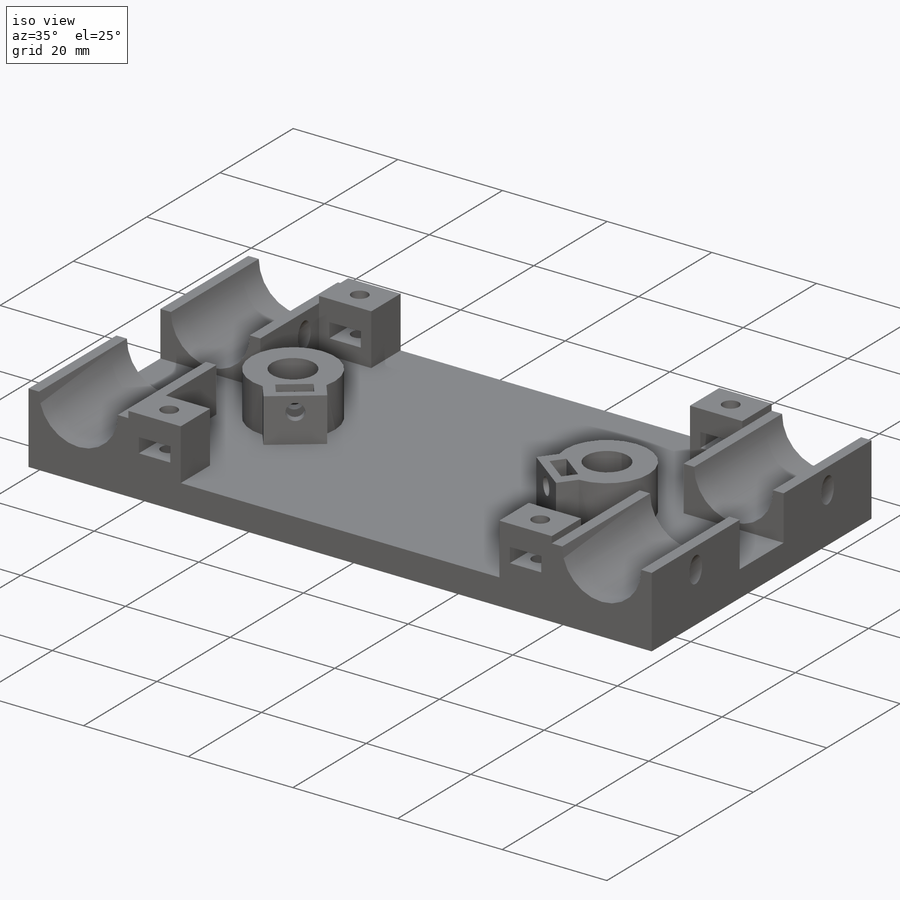
[diagram: iso view]
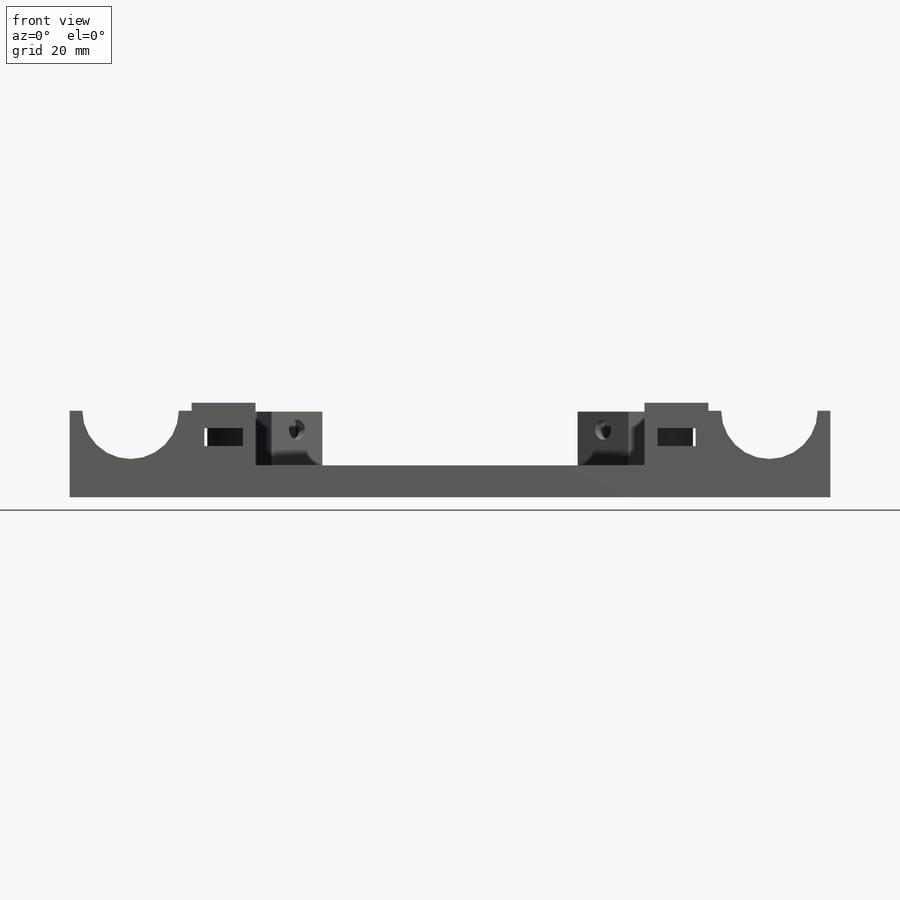
[diagram: front view]
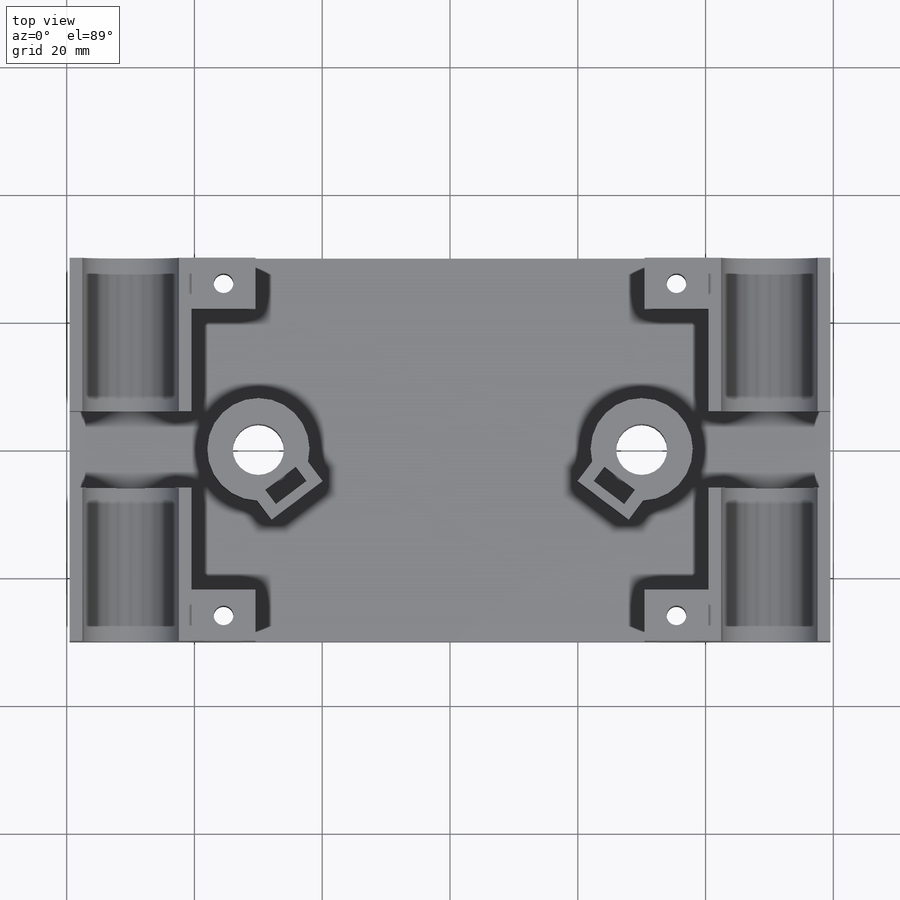
[diagram: top view]
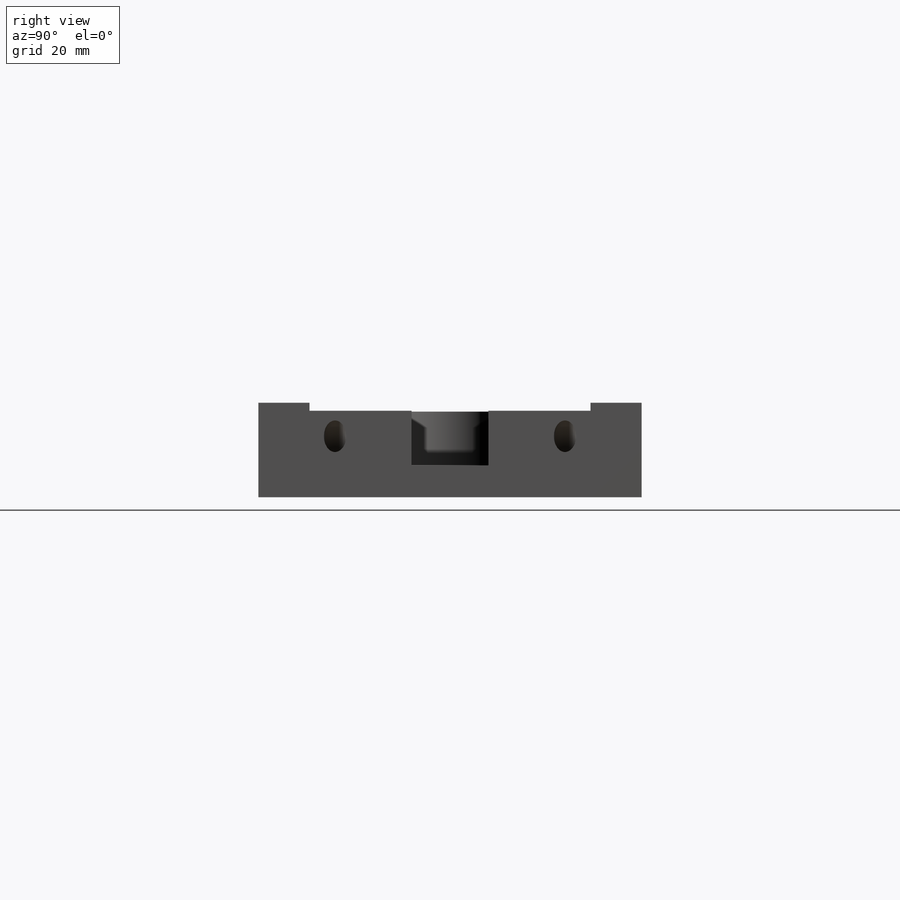
[diagram: right view]
SOLIDWORKS PART (.sldprt)
format: sldprt  version: not decoded by parser v0  size: 462,336 bytes
history: native  units: mm
features: sketch x9, mirror x8, cut_extrude x5, extrude x4, plane x2, material x1 (+13 scaffold rows collapsed)
feature tree (42):
  scaffold x13  (default folders/planes/origin — collapsed)
  material  "Material <not specified>"
  sketch  "Sketch1"  dims[D1=60.0mm D2=119.1mm D3=59.55mm D4=30.0mm]
  extrude  "Boss-Extrude1"  Depth=5mm
  sketch  "Sketch2"  dims[D3=15.1mm D1=19.1mm D2=8.55mm D4=50.0mm]
  extrude  "Boss-Extrude2"  Depth=24mm
  mirror  "Mirror1"
  mirror  "Mirror2"
  plane  "Plane1"
  plane  "Plane2"
  sketch  "Sketch3"  dims[D1=3.5mm]
  cut_extrude  "Cut-Extrude1"  Depth=10mm
  mirror  "Mirror3"
  mirror  "Mirror4"
  mirror  "Mirror5"
  sketch  "Sketch4"  dims[D1=8.0mm D2=8.0mm D5=16.0mm D6=16.0mm D3=30.0mm D4=30.0mm D7=10.0mm D8=10.0mm D9=5.0mm D10=30.0mm]
  extrude  "Boss-Extrude3"  Depth=8.4mm
  sketch  "Sketch6"  dims[D1=2.8mm D2=6.0mm D3=1.5mm D4=2.0mm]
  cut_extrude  "Cut-Extrude3"  Depth=6mm
  sketch  "Sketch7"  dims[D1=2.8mm D2=5.0mm]
  cut_extrude  "Cut-Extrude4"  Depth=8mm
  mirror  "Mirror7"
  sketch  "Sketch8"
  cut_extrude  "Cut-Extrude5"  Depth=8mm
  sketch  "Sketch9"  dims[D1=2.8mm D2=6.0mm D3=2.0mm D4=2.0mm D5=4.0mm D6=3.0mm]
  extrude  "Boss-Extrude4"  Depth=8mm
  mirror  "Mirror8"
  mirror  "Mirror9"
  sketch  "Sketch10"  dims[D1=3.1mm D2=4.0mm D3=5.0mm D4=5.0mm D5=4.0mm D6=4.0mm D7=5.0mm D8=5.0mm D9=4.0mm]
  cut_extrude  "Cut-Extrude6"  [1 undecoded]
decode coverage: 16 of 26 modeling features carry decoded parameters
note: 1 parameter value undecoded
note: suppression state not decoded; provenance and decode notes live in map.json
